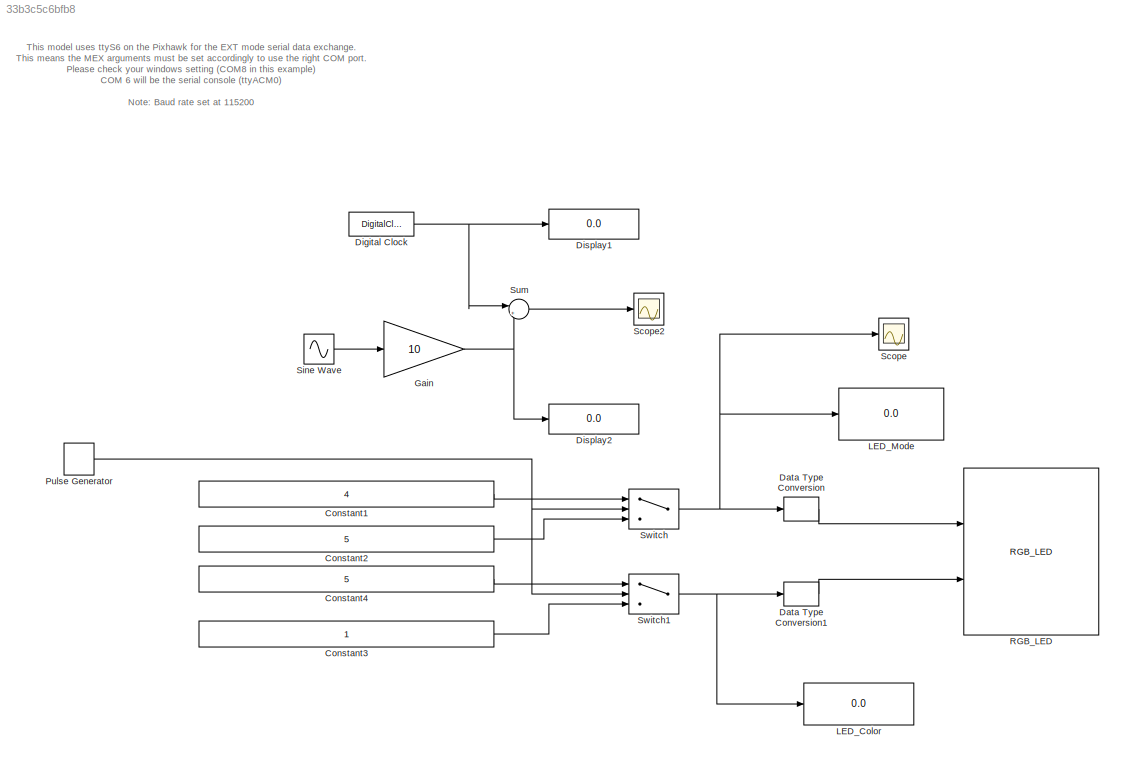
MODEL slx_33b3c5c6bfb8
KIND model
CONFIG AbsTol = auto
CONFIG EnableMultiTasking = on
CONFIG FixedStep = auto
CONFIG InitFcn = GainTune = 1;
CONFIG MaxStep = auto
CONFIG MinStep = auto
CONFIG RelTol = 1e-3
CONFIG SampleTimeConstraint = Unconstrained
CONFIG Solver = FixedStepDiscrete
CONFIG SolverName = FixedStepDiscrete
CONFIG StartTime = 0.0
CONFIG StopTime = inf
BLOCK [Constant] Constant1
  OutDataTypeStr = int8
  Value = 4
BLOCK [Constant] Constant2
  OutDataTypeStr = int8
  Value = 5
BLOCK [Constant] Constant3
  OutDataTypeStr = int8
BLOCK [Constant] Constant4
  OutDataTypeStr = int8
  Value = 5
BLOCK [DataTypeConversion] Data Type Conversion
  OutDataTypeStr = Enum: RGBLED_MODE_ENUM
  RndMeth = Floor
  SaturateOnIntegerOverflow = off
BLOCK [DataTypeConversion] Data Type Conversion1
  OutDataTypeStr = Enum: RGBLED_COLOR_ENUM
  RndMeth = Floor
  SaturateOnIntegerOverflow = off
BLOCK [DigitalClock] Digital Clock
  SampleTime = 0.1
BLOCK [Display] Display1
  Decimation = 1
  Ports = [1]
BLOCK [Display] Display2
  Decimation = 1
  Ports = [1]
BLOCK [Gain] Gain
  Gain = 10
  OutDataTypeStr = Inherit: Inherit via internal rule
  ParamDataTypeStr = Inherit: Inherit via internal rule
  SaturateOnIntegerOverflow = off
BLOCK [Display] LED_Color
  Decimation = 1
  Ports = [1]
BLOCK [Display] LED_Mode
  Decimation = 1
  Ports = [1]
BLOCK [DiscretePulseGenerator] Pulse Generator
  Period = 6
  Ports = [0, 1]
  PulseType = Time based
  PulseWidth = 50
BLOCK [Reference] RGB_LED  REF=pixhawk_slib_sensors_actuators/RGB_LED
  Ports = [2]
  SourceBlock = pixhawk_slib_sensors_actuators/RGB_LED
  SourceProductName = Pixhawk Target Blocks
  SourceType = PX4_RGBLED - controls the mode and color of the Pixhawk RGB LED
BLOCK [Scope] Scope
  NumInputPorts = 1
  Ports = [1]
  ScopeSpecificationString = C++SS(StrPVP('Location','[11, 248, 335, 487]'),StrPVP('Open','off'),MxPVP('AxesTitles',53,'struct(''axes1'',''%<SignalLabel>'')'),MxPVP('ScopeGraphics',56,'struct(''FigureColor'',''[0.5 0.5 0.5]'',''AxesColor'',''[0 0 0]'',''AxesTickColor'',''[1 1 1]'',''LineColors'',''[1 1 0;1 0 1;0 1 1;1 0 0;0 1 0;0 0 1]'',''LineStyles'',''-|-|-|-|-|-'',''LineWidths'',''[0.5 0.5 0.5 0.5 0.5 0.5]'',''MarkerStyles...<+201ch>
BLOCK [Scope] Scope2
  NumInputPorts = 1
  Ports = [1]
  ScopeSpecificationString = C++SS(StrPVP('Location','[188, 365, 512, 604]'),StrPVP('Open','off'),MxPVP('AxesTitles',53,'struct(''axes1'',''%<SignalLabel>'')'),StrPVP('SaveName','ScopeData2'),StrPVP('LimitDataPoints','on'),StrPVP('DataFormat','Array'),StrPVP('Decimation','1'),StrPVP('BlockParamSampleInput','off'))
BLOCK [Sin] Sine Wave
  Ports = [0, 1]
  SampleTime = 0.1
BLOCK [Sum] Sum
  IconShape = round
  InputSameDT = off
  Inputs = |++
  OutDataTypeStr = Inherit: Inherit via internal rule
  Ports = [2, 1]
  SaturateOnIntegerOverflow = off
BLOCK [Switch] Switch
  Criteria = u2 ~= 0
  InputSameDT = off
  SaturateOnIntegerOverflow = off
  Threshold = 1500
BLOCK [Switch] Switch1
  Criteria = u2 ~= 0
  InputSameDT = off
  SaturateOnIntegerOverflow = off
  Threshold = 1500
ANNOTATION (root): This model uses ttyS6 on the Pixhawk for the EXT mode serial data exchange. This means the MEX arguments must be set accordingly to use the right COM port. Please check your windows setting (COM8 in this example) COM 6 will be the serial console (ttyACM0) Note: Baud rate set at 115200
LINE Constant1:1 -> Switch:1
LINE Constant2:1 -> Switch:3
LINE Constant3:1 -> Switch1:3
LINE Constant4:1 -> Switch1:1
LINE Data Type Conversion1:1 -> RGB_LED:2
LINE Data Type Conversion:1 -> RGB_LED:1
NET Digital Clock:1 -> Display1:1, Sum:1
NET Gain:1 -> Display2:1, Sum:2
NET Pulse Generator:1 -> Switch1:2, Switch:2
LINE Sine Wave:1 -> Gain:1
LINE Sum:1 -> Scope2:1
NET Switch1:1 -> Data Type Conversion1:1, LED_Color:1
NET Switch:1 -> Data Type Conversion:1, LED_Mode:1, Scope:1
note: NET lines group one-source signal fan-out (src -> all destinations, sorted); 1:1 wires keep LINE
